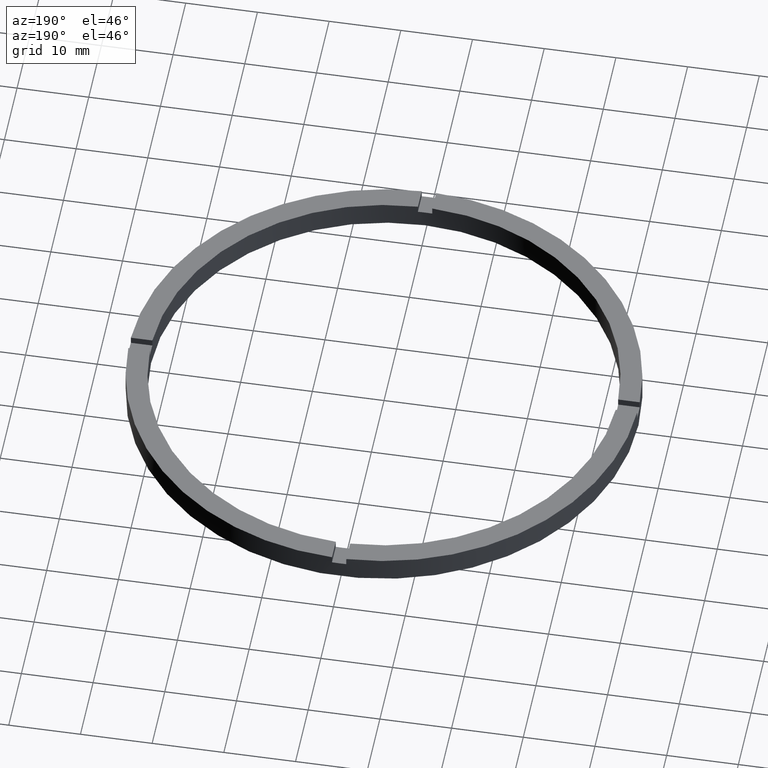
[diagram: clean part render]
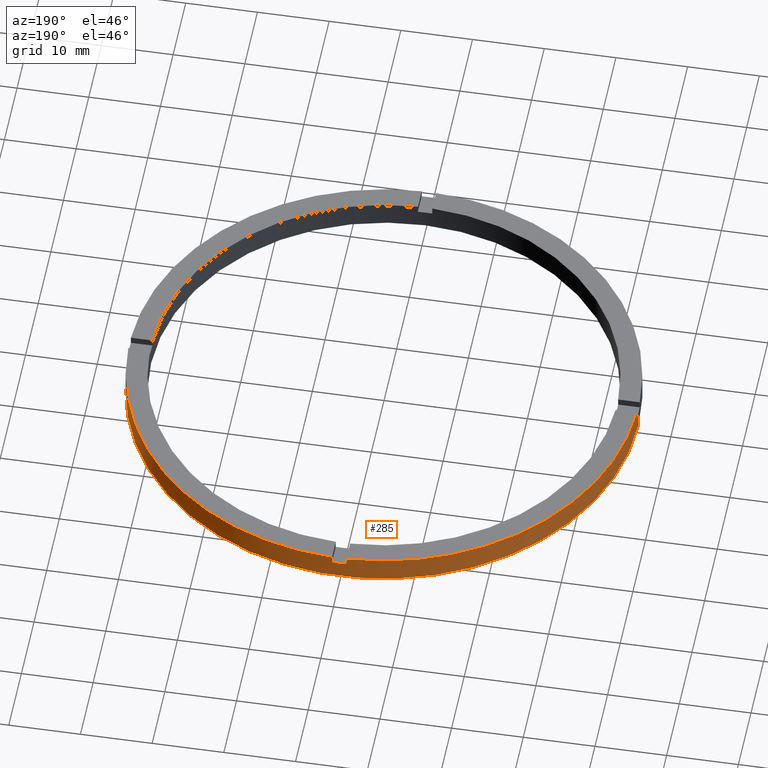
[diagram: same view with one face highlighted and labeled with its STEP entity id]
A machine part, auxiliary view. The second image highlights one B-rep face of the part: STEP entity #285.
In plain terms, the highlighted cylindrical surface (partial cylindrical patch) has radius 35.5 mm, axis along (-0, -0, -1).
Its self-contained STEP definition (entity closure, byte-faithful):
#4 = CARTESIAN_POINT ( 'NONE',  ( -35.50000000000000711, 0.000000000000000000, 0.000000000000000000 ) ) ;
#6 = DIRECTION ( 'NONE',  ( 1.000000000000000000, 0.000000000000000000, 0.000000000000000000 ) ) ;
#10 = EDGE_CURVE ( 'NONE', #427, #169, #137, .T. ) ;
#32 = CARTESIAN_POINT ( 'NONE',  ( 0.9999999999999751310, 35.48591269785801217, 3.500000000000000000 ) ) ;
#42 = DIRECTION ( 'NONE',  ( 0.000000000000000000, 0.000000000000000000, 1.000000000000000000 ) ) ;
#48 = VERTEX_POINT ( 'NONE', #253 ) ;
#58 = CARTESIAN_POINT ( 'NONE',  ( 35.48591269785801927, 0.9999999999998421263, 3.500000000000000000 ) ) ;
#62 = CARTESIAN_POINT ( 'NONE',  ( 0.000000000000000000, 0.000000000000000000, 3.500000000000000000 ) ) ;
#65 = CARTESIAN_POINT ( 'NONE',  ( 0.000000000000000000, 0.000000000000000000, 2.500000000000000000 ) ) ;
#72 = CIRCLE ( 'NONE', #305, 35.50000000000000711 ) ;
#84 = DIRECTION ( 'NONE',  ( 1.000000000000000000, 0.000000000000000000, 0.000000000000000000 ) ) ;
#96 = CIRCLE ( 'NONE', #198, 35.50000000000000711 ) ;
#98 = LINE ( 'NONE', #569, #381 ) ;
#99 = DIRECTION ( 'NONE',  ( 1.000000000000000000, 0.000000000000000000, 0.000000000000000000 ) ) ;
#100 = CIRCLE ( 'NONE', #539, 35.50000000000000711 ) ;
#102 = EDGE_CURVE ( 'NONE', #169, #508, #170, .T. ) ;
#107 = EDGE_LOOP ( 'NONE', ( #336, #194, #479, #497, #462, #464, #735, #730, #319, #172, #214, #738 ) ) ;
#108 = CARTESIAN_POINT ( 'NONE',  ( 0.9999999999999751310, 35.48591269785801217, 3.500000000000000000 ) ) ;
#110 = CARTESIAN_POINT ( 'NONE',  ( 35.50000000000000711, 4.347496136973104070E-15, 0.000000000000000000 ) ) ;
#118 = VERTEX_POINT ( 'NONE', #274 ) ;
#119 = DIRECTION ( 'NONE',  ( -0.000000000000000000, -0.000000000000000000, -1.000000000000000000 ) ) ;
#120 = DIRECTION ( 'NONE',  ( 0.000000000000000000, 0.000000000000000000, 1.000000000000000000 ) ) ;
#124 = EDGE_CURVE ( 'NONE', #48, #174, #165, .T. ) ;
#133 = VECTOR ( 'NONE', #380, 1000.000000000000000 ) ;
#137 = LINE ( 'NONE', #557, #415 ) ;
#165 = LINE ( 'NONE', #58, #133 ) ;
#169 = VERTEX_POINT ( 'NONE', #110 ) ;
#170 = CIRCLE ( 'NONE', #687, 35.50000000000000711 ) ;
#172 = ORIENTED_EDGE ( 'NONE', *, *, #412, .T. ) ;
#174 = VERTEX_POINT ( 'NONE', #223 ) ;
#190 = CIRCLE ( 'NONE', #243, 35.50000000000000711 ) ;
#194 = ORIENTED_EDGE ( 'NONE', *, *, #10, .T. ) ;
#198 = AXIS2_PLACEMENT_3D ( 'NONE', #302, #298, #661 ) ;
#203 = VERTEX_POINT ( 'NONE', #615 ) ;
#206 = CARTESIAN_POINT ( 'NONE',  ( 0.000000000000000000, 0.000000000000000000, 3.500000000000000000 ) ) ;
#214 = ORIENTED_EDGE ( 'NONE', *, *, #565, .F. ) ;
#223 = CARTESIAN_POINT ( 'NONE',  ( 35.48591269785801927, 0.9999999999998421263, 2.500000000000000000 ) ) ;
#242 = DIRECTION ( 'NONE',  ( -1.000000000000000000, 0.000000000000000000, 0.000000000000000000 ) ) ;
#243 = AXIS2_PLACEMENT_3D ( 'NONE', #65, #295, #84 ) ;
#251 = EDGE_CURVE ( 'NONE', #203, #607, #409, .T. ) ;
#253 = CARTESIAN_POINT ( 'NONE',  ( 35.48591269785801927, 0.9999999999998421263, 3.500000000000000000 ) ) ;
#254 = CARTESIAN_POINT ( 'NONE',  ( 35.50000000000000711, 4.347496136973104070E-15, 2.500000000000000000 ) ) ;
#261 = CARTESIAN_POINT ( 'NONE',  ( -35.48591269785801217, 0.9999999999999731326, 3.500000000000000000 ) ) ;
#267 = CARTESIAN_POINT ( 'NONE',  ( 0.000000000000000000, 0.000000000000000000, 3.500000000000000000 ) ) ;
#274 = CARTESIAN_POINT ( 'NONE',  ( -1.000000000000024869, 35.48591269785801217, 2.500000000000000000 ) ) ;
#280 = CARTESIAN_POINT ( 'NONE',  ( -35.48591269785801217, 0.9999999999999731326, 2.500000000000000000 ) ) ;
#285 = ADVANCED_FACE ( 'NONE', ( #420 ), #675, .T. ) ;
#295 = DIRECTION ( 'NONE',  ( 0.000000000000000000, 0.000000000000000000, 1.000000000000000000 ) ) ;
#298 = DIRECTION ( 'NONE',  ( 0.000000000000000000, 0.000000000000000000, 1.000000000000000000 ) ) ;
#301 = DIRECTION ( 'NONE',  ( -0.000000000000000000, -0.000000000000000000, -1.000000000000000000 ) ) ;
#302 = CARTESIAN_POINT ( 'NONE',  ( 0.000000000000000000, 0.000000000000000000, 2.500000000000000000 ) ) ;
#305 = AXIS2_PLACEMENT_3D ( 'NONE', #206, #751, #99 ) ;
#310 = DIRECTION ( 'NONE',  ( 1.000000000000000000, 0.000000000000000000, 0.000000000000000000 ) ) ;
#319 = ORIENTED_EDGE ( 'NONE', *, *, #426, .F. ) ;
#321 = CARTESIAN_POINT ( 'NONE',  ( -1.000000000000024869, 35.48591269785801217, 3.500000000000000000 ) ) ;
#336 = ORIENTED_EDGE ( 'NONE', *, *, #514, .F. ) ;
#352 = DIRECTION ( 'NONE',  ( 0.000000000000000000, 0.000000000000000000, 1.000000000000000000 ) ) ;
#356 = VECTOR ( 'NONE', #119, 1000.000000000000000 ) ;
#365 = EDGE_CURVE ( 'NONE', #743, #493, #190, .T. ) ;
#368 = DIRECTION ( 'NONE',  ( 1.000000000000000000, 0.000000000000000000, 0.000000000000000000 ) ) ;
#380 = DIRECTION ( 'NONE',  ( -0.000000000000000000, -0.000000000000000000, -1.000000000000000000 ) ) ;
#381 = VECTOR ( 'NONE', #42, 1000.000000000000000 ) ;
#401 = DIRECTION ( 'NONE',  ( -0.000000000000000000, -0.000000000000000000, -1.000000000000000000 ) ) ;
#409 = CIRCLE ( 'NONE', #704, 35.50000000000000711 ) ;
#412 = EDGE_CURVE ( 'NONE', #716, #480, #468, .T. ) ;
#415 = VECTOR ( 'NONE', #301, 1000.000000000000000 ) ;
#420 = FACE_OUTER_BOUND ( 'NONE', #107, .T. ) ;
#426 = EDGE_CURVE ( 'NONE', #716, #118, #100, .T. ) ;
#427 = VERTEX_POINT ( 'NONE', #254 ) ;
#448 = EDGE_CURVE ( 'NONE', #743, #607, #98, .T. ) ;
#462 = ORIENTED_EDGE ( 'NONE', *, *, #365, .F. ) ;
#464 = ORIENTED_EDGE ( 'NONE', *, *, #448, .T. ) ;
#468 = LINE ( 'NONE', #32, #640 ) ;
#470 = DIRECTION ( 'NONE',  ( -0.000000000000000000, -0.000000000000000000, -1.000000000000000000 ) ) ;
#479 = ORIENTED_EDGE ( 'NONE', *, *, #102, .T. ) ;
#480 = VERTEX_POINT ( 'NONE', #108 ) ;
#493 = VERTEX_POINT ( 'NONE', #590 ) ;
#497 = ORIENTED_EDGE ( 'NONE', *, *, #689, .F. ) ;
#508 = VERTEX_POINT ( 'NONE', #4 ) ;
#514 = EDGE_CURVE ( 'NONE', #427, #174, #96, .T. ) ;
#535 = CARTESIAN_POINT ( 'NONE',  ( 0.9999999999999751310, 35.48591269785801217, 2.500000000000000000 ) ) ;
#539 = AXIS2_PLACEMENT_3D ( 'NONE', #766, #634, #368 ) ;
#540 = CARTESIAN_POINT ( 'NONE',  ( -35.50000000000000711, 0.000000000000000000, 3.500000000000000000 ) ) ;
#544 = LINE ( 'NONE', #540, #546 ) ;
#546 = VECTOR ( 'NONE', #470, 1000.000000000000000 ) ;
#557 = CARTESIAN_POINT ( 'NONE',  ( 35.50000000000000711, 4.347496136973104070E-15, 3.500000000000000000 ) ) ;
#565 = EDGE_CURVE ( 'NONE', #48, #480, #72, .T. ) ;
#569 = CARTESIAN_POINT ( 'NONE',  ( -35.48591269785801217, 0.9999999999999731326, 3.500000000000000000 ) ) ;
#583 = AXIS2_PLACEMENT_3D ( 'NONE', #62, #401, #242 ) ;
#590 = CARTESIAN_POINT ( 'NONE',  ( -35.50000000000000711, 0.000000000000000000, 2.500000000000000000 ) ) ;
#604 = CARTESIAN_POINT ( 'NONE',  ( 0.000000000000000000, 0.000000000000000000, 0.000000000000000000 ) ) ;
#607 = VERTEX_POINT ( 'NONE', #261 ) ;
#615 = CARTESIAN_POINT ( 'NONE',  ( -1.000000000000024869, 35.48591269785801217, 3.500000000000000000 ) ) ;
#622 = DIRECTION ( 'NONE',  ( 0.000000000000000000, 0.000000000000000000, 1.000000000000000000 ) ) ;
#623 = LINE ( 'NONE', #321, #356 ) ;
#634 = DIRECTION ( 'NONE',  ( 0.000000000000000000, -0.000000000000000000, 1.000000000000000000 ) ) ;
#640 = VECTOR ( 'NONE', #622, 1000.000000000000000 ) ;
#653 = EDGE_CURVE ( 'NONE', #203, #118, #623, .T. ) ;
#661 = DIRECTION ( 'NONE',  ( 1.000000000000000000, 0.000000000000000000, 0.000000000000000000 ) ) ;
#675 = CYLINDRICAL_SURFACE ( 'NONE', #583, 35.50000000000000711 ) ;
#687 = AXIS2_PLACEMENT_3D ( 'NONE', #604, #120, #6 ) ;
#689 = EDGE_CURVE ( 'NONE', #493, #508, #544, .T. ) ;
#704 = AXIS2_PLACEMENT_3D ( 'NONE', #267, #352, #310 ) ;
#716 = VERTEX_POINT ( 'NONE', #535 ) ;
#730 = ORIENTED_EDGE ( 'NONE', *, *, #653, .T. ) ;
#735 = ORIENTED_EDGE ( 'NONE', *, *, #251, .F. ) ;
#738 = ORIENTED_EDGE ( 'NONE', *, *, #124, .T. ) ;
#743 = VERTEX_POINT ( 'NONE', #280 ) ;
#751 = DIRECTION ( 'NONE',  ( 0.000000000000000000, 0.000000000000000000, 1.000000000000000000 ) ) ;
#766 = CARTESIAN_POINT ( 'NONE',  ( 0.000000000000000000, 0.000000000000000000, 2.500000000000000000 ) ) ;